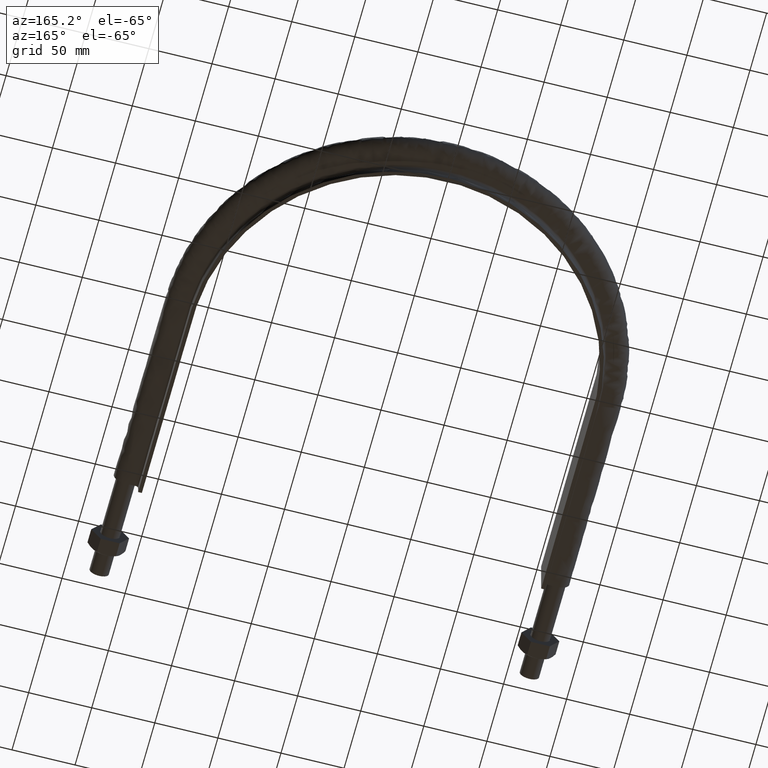
[diagram: clean part render]
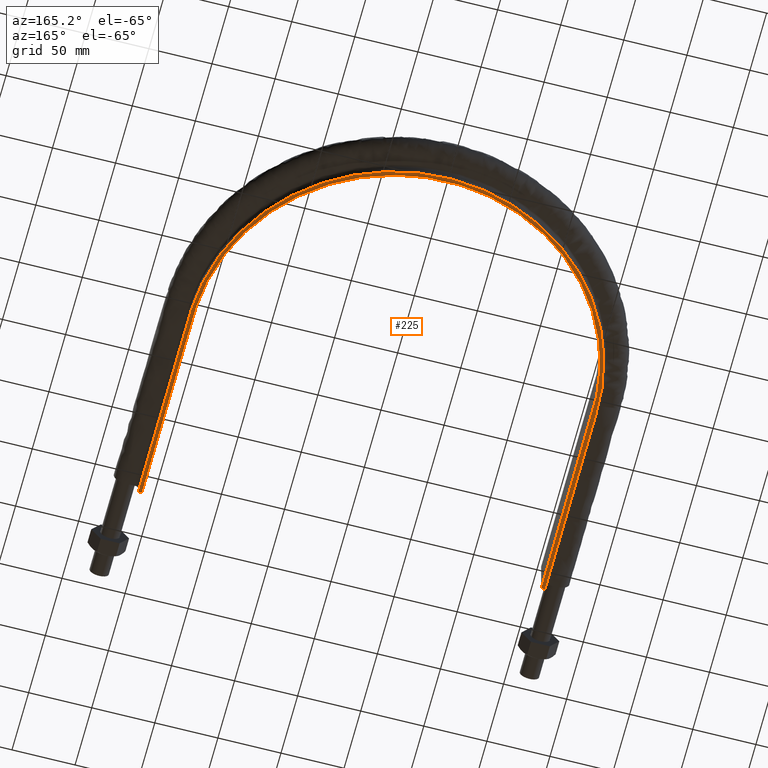
[diagram: same view with one face highlighted and labeled with its STEP entity id]
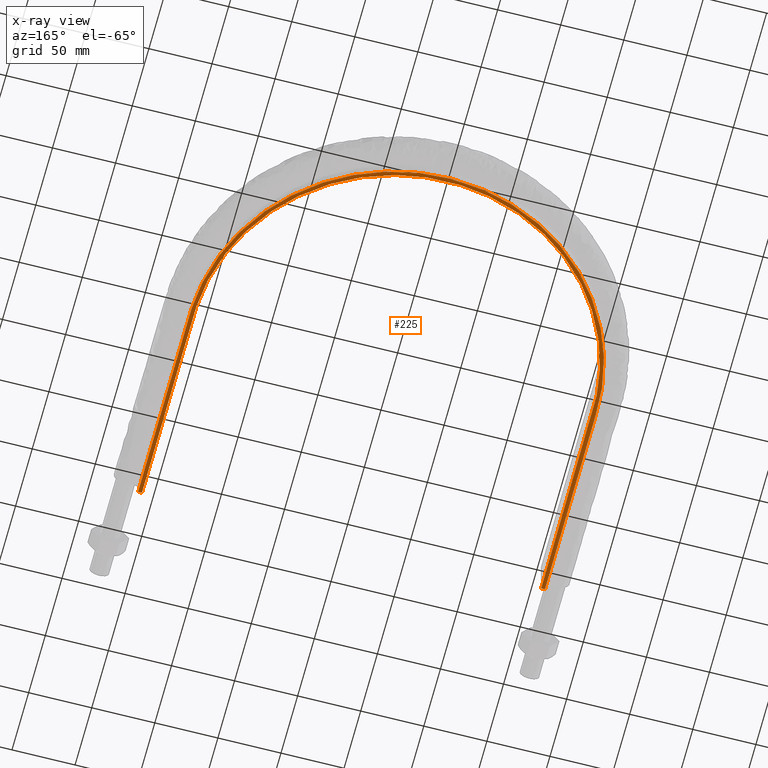
[diagram: x-ray of the same camera — body ghosted, the highlighted face saturated]
A machine part, auxiliary view. The second image highlights one B-rep face of the part: STEP entity #225.
The next image is the same camera in x-ray: the body ghosted, the highlighted face saturated — about 0% of this face is hidden behind the body in this view.
In plain terms, the highlighted planar face has unit normal (0, 0, 1).
Its self-contained STEP definition (entity closure, byte-faithful):
#225 = ADVANCED_FACE( '', ( #274 ), #275, .F. );
#274 = FACE_OUTER_BOUND( '', #952, .T. );
#275 = PLANE( '', #953 );
#952 = EDGE_LOOP( '', ( #1687, #1688, #1689, #1690 ) );
#953 = AXIS2_PLACEMENT_3D( '', #1691, #1692, #1693 );
#1687 = ORIENTED_EDGE( '', *, *, #1916, .F. );
#1688 = ORIENTED_EDGE( '', *, *, #1914, .F. );
#1689 = ORIENTED_EDGE( '', *, *, #1909, .T. );
#1690 = ORIENTED_EDGE( '', *, *, #1906, .F. );
#1691 = CARTESIAN_POINT( '', ( 200.000000000000, 481.660000000000, -20.0000000000000 ) );
#1692 = DIRECTION( '', ( 0.000000000000000, 0.000000000000000, 1.00000000000000 ) );
#1693 = DIRECTION( '', ( 1.22460635382238E-016, 1.00000000000000, 0.000000000000000 ) );
#1906 = EDGE_CURVE( '', #1984, #1987, #1988, .T. );
#1909 = EDGE_CURVE( '', #1991, #1987, #1992, .T. );
#1914 = EDGE_CURVE( '', #1991, #1996, #2000, .T. );
#1916 = EDGE_CURVE( '', #1996, #1984, #2002, .T. );
#1984 = VERTEX_POINT( '', #2410 );
#1987 = VERTEX_POINT( '', #2414 );
#1988 = LINE( '', #2415, #2416 );
#1991 = VERTEX_POINT( '', #2421 );
#1992 = B_SPLINE_CURVE_WITH_KNOTS( '', 3, ( #2422, #2423, #2424, #2425, #2426, #2427, #2428, #2429, #2430, #2431, #2432, #2433, #2434, #2435, #2436, #2437, #2438, #2439, #2440, #2441, #2442, #2443, #2444, #2445, #2446, #2447, #2448, #2449, #2450, #2451, #2452, #2453, #2454, #2455, #2456, #2457, #2458, #2459, #2460, #2461, #2462, #2463, #2464, #2465, #2466, #2467, #2468, #2469, #2470, #2471, #2472, #2473, #2474, #2475, #2476, #2477, #2478, #2479, #2480, #2481, #2482, #2483, #2484, #2485, #2486, #2487, #2488, #2489, #2490, #2491, #2492, #2493, #2494, #2495, #2496, #2497, #2498, #2499, #2500, #2501, #2502, #2503, #2504, #2505, #2506, #2507, #2508, #2509, #2510, #2511, #2512, #2513, #2514, #2515, #2516, #2517, #2518, #2519, #2520, #2521, #2522, #2523, #2524, #2525, #2526, #2527, #2528, #2529, #2530, #2531, #2532, #2533 ), .UNSPECIFIED., .F., .F., ( 4, 1, 2, 2, 2, 2, 2, 2, 2, 2, 2, 2, 2, 2, 2, 2, 2, 2, 2, 2, 2, 2, 2, 2, 2, 2, 2, 2, 2, 2, 2, 2, 2, 2, 2, 2, 2, 2, 2, 2, 2, 2, 2, 2, 2, 2, 2, 2, 2, 2, 2, 2, 2, 2, 2, 1, 4 ), ( 4.16333634234434E-017, 0.102905858842167, 0.154358788263250, 0.157574596352068, 0.160790404440885, 0.167222020618521, 0.180085252973792, 0.192948485329063, 0.205811717684334, 0.212243333861970, 0.215459141950788, 0.218674950039606, 0.231538182394878, 0.244401414750149, 0.257264647105421, 0.270127879460693, 0.276559495638329, 0.282991111815965, 0.295854344171237, 0.308717576526508, 0.321580808881780, 0.328012425059416, 0.334444041237052, 0.347307273592324, 0.360170505947596, 0.373033738302868, 0.379465354480504, 0.385896970658140, 0.398760203013412, 0.411623435368684, 0.424486667723955, 0.437349900079227, 0.463076364789771, 0.475939597145043, 0.488802829500315, 0.495234445677951, 0.501666061855587, 0.514529294210859, 0.527392526566130, 0.540255758921402, 0.546687375099038, 0.553118991276674, 0.565982223631946, 0.578845455987217, 0.591708688342489, 0.598140304520125, 0.604571920697761, 0.617435153053032, 0.630298385408304, 0.643161617763575, 0.656024850118847, 0.662456466296482, 0.665672274385300, 0.668888082474118, 0.694614547184662, 0.720341011895205, 0.823246870737378 ), .UNSPECIFIED. );
#1996 = VERTEX_POINT( '', #2548 );
#2000 = LINE( '', #2554, #2555 );
#2002 = B_SPLINE_CURVE_WITH_KNOTS( '', 3, ( #2574, #2575, #2576, #2577, #2578, #2579, #2580, #2581, #2582, #2583, #2584, #2585, #2586, #2587, #2588, #2589, #2590, #2591 ), .UNSPECIFIED., .F., .F., ( 4, 3, 1, 1, 1, 1, 1, 1, 1, 1, 3, 4 ), ( -11.0000000000000, -10.0000000000000, -9.00000000000000, -8.00000000000000, -7.00000000000000, -6.00000000000000, -5.00000000000000, -4.00000000000000, -3.00000000000000, -2.00000000000000, -1.00000000000000, 0.000000000000000 ), .UNSPECIFIED. );
#2410 = CARTESIAN_POINT( '', ( 158.250000000000, 81.6600000000000, -20.0000000000000 ) );
#2414 = CARTESIAN_POINT( '', ( 161.250000000000, 81.6600000000001, -20.0000000000000 ) );
#2415 = CARTESIAN_POINT( '', ( -200.000000000000, 81.6600000000002, -20.0000000000000 ) );
#2416 = VECTOR( '', #2863, 1000.00000000000 );
#2421 = CARTESIAN_POINT( '', ( -161.250000000000, 81.6600000000001, -20.0000000000000 ) );
#2422 = CARTESIAN_POINT( '', ( -161.250000000000, 81.6600000000001, -20.0000000000000 ) );
#2423 = CARTESIAN_POINT( '', ( -161.250000000000, 115.961965199335, -20.0000000000000 ) );
#2424 = CARTESIAN_POINT( '', ( -161.250000000000, 167.414912998337, -20.0000000000000 ) );
#2425 = CARTESIAN_POINT( '', ( -161.250000000000, 218.867860797340, -20.0000000000000 ) );
#2426 = CARTESIAN_POINT( '', ( -161.250000000000, 237.090779809486, -20.0000000000000 ) );
#2427 = CARTESIAN_POINT( '', ( -161.251970915232, 238.162717887778, -20.0000000000000 ) );
#2428 = CARTESIAN_POINT( '', ( -161.233234905318, 240.306574877111, -20.0000000000000 ) );
#2429 = CARTESIAN_POINT( '', ( -161.212573749003, 241.378493826836, -20.0000000000000 ) );
#2430 = CARTESIAN_POINT( '', ( -161.118167583804, 244.594223272434, -20.0000000000000 ) );
#2431 = CARTESIAN_POINT( '', ( -161.012016167499, 246.737364921138, -20.0000000000000 ) );
#2432 = CARTESIAN_POINT( '', ( -160.568059920858, 253.130988149217, -20.0000000000000 ) );
#2433 = CARTESIAN_POINT( '', ( -160.104407936144, 257.357673118889, -20.0000000000000 ) );
#2434 = CARTESIAN_POINT( '', ( -158.852451542727, 265.741864153589, -20.0000000000000 ) );
#2435 = CARTESIAN_POINT( '', ( -158.063775191925, 269.899290962942, -20.0000000000000 ) );
#2436 = CARTESIAN_POINT( '', ( -156.162945028249, 278.145216045004, -20.0000000000000 ) );
#2437 = CARTESIAN_POINT( '', ( -155.050685017919, 282.233691688517, -20.0000000000000 ) );
#2438 = CARTESIAN_POINT( '', ( -153.134376609017, 288.313577201091, -20.0000000000000 ) );
#2439 = CARTESIAN_POINT( '', ( -152.454186526902, 290.331379550325, -20.0000000000000 ) );
#2440 = CARTESIAN_POINT( '', ( -151.370652027001, 293.344605513937, -20.0000000000000 ) );
#2441 = CARTESIAN_POINT( '', ( -150.998932061584, 294.346767858147, -20.0000000000000 ) );
#2442 = CARTESIAN_POINT( '', ( -150.234219283645, 296.346559599474, -20.0000000000000 ) );
#2443 = CARTESIAN_POINT( '', ( -149.840760044903, 297.345319193443, -20.0000000000000 ) );
#2444 = CARTESIAN_POINT( '', ( -147.826549821755, 302.311248733165, -20.0000000000000 ) );
#2445 = CARTESIAN_POINT( '', ( -146.066449266342, 306.193281154290, -20.0000000000000 ) );
#2446 = CARTESIAN_POINT( '', ( -142.261276995410, 313.783543362077, -20.0000000000000 ) );
#2447 = CARTESIAN_POINT( '', ( -140.215650977875, 317.491435082421, -20.0000000000000 ) );
#2448 = CARTESIAN_POINT( '', ( -135.842265497154, 324.735146597987, -20.0000000000000 ) );
#2449 = CARTESIAN_POINT( '', ( -133.514264763888, 328.270819243666, -20.0000000000000 ) );
#2450 = CARTESIAN_POINT( '', ( -128.572511593200, 335.167885850242, -20.0000000000000 ) );
#2451 = CARTESIAN_POINT( '', ( -125.958458072442, 338.529096181760, -20.0000000000000 ) );
#2452 = CARTESIAN_POINT( '', ( -121.814782223255, 343.435151638853, -20.0000000000000 ) );
#2453 = CARTESIAN_POINT( '', ( -120.395398909187, 345.048693263545, -20.0000000000000 ) );
#2454 = CARTESIAN_POINT( '', ( -117.508079182863, 348.201555524783, -20.0000000000000 ) );
#2455 = CARTESIAN_POINT( '', ( -116.037116900756, 349.744609171351, -20.0000000000000 ) );
#2456 = CARTESIAN_POINT( '', ( -111.544115229342, 354.275828924883, -20.0000000000000 ) );
#2457 = CARTESIAN_POINT( '', ( -108.441840326106, 357.165906302352, -20.0000000000000 ) );
#2458 = CARTESIAN_POINT( '', ( -102.027993104791, 362.690192845027, -20.0000000000000 ) );
#2459 = CARTESIAN_POINT( '', ( -98.7162675526894, 365.324214680088, -20.0000000000000 ) );
#2460 = CARTESIAN_POINT( '', ( -91.8819928807469, 370.334524400556, -20.0000000000000 ) );
#2461 = CARTESIAN_POINT( '', ( -88.3596907755549, 372.711114263876, -20.0000000000000 ) );
#2462 = CARTESIAN_POINT( '', ( -82.9131148904049, 376.076579870327, -20.0000000000000 ) );
#2463 = CARTESIAN_POINT( '', ( -81.0683875074586, 377.166193615632, -20.0000000000000 ) );
#2464 = CARTESIAN_POINT( '', ( -77.3317958302756, 379.272768040217, -20.0000000000000 ) );
#2465 = CARTESIAN_POINT( '', ( -75.4485733332874, 380.284931874203, -20.0000000000000 ) );
#2466 = CARTESIAN_POINT( '', ( -69.7551854747403, 383.200972491039, -20.0000000000000 ) );
#2467 = CARTESIAN_POINT( '', ( -65.9013247113465, 384.984467170127, -20.0000000000000 ) );
#2468 = CARTESIAN_POINT( '', ( -58.0804202517151, 388.239634254254, -20.0000000000000 ) );
#2469 = CARTESIAN_POINT( '', ( -54.1132805496331, 389.711042160399, -20.0000000000000 ) );
#2470 = CARTESIAN_POINT( '', ( -46.0659693145780, 392.342451988916, -20.0000000000000 ) );
#2471 = CARTESIAN_POINT( '', ( -41.9857908178075, 393.502434725825, -20.0000000000000 ) );
#2472 = CARTESIAN_POINT( '', ( -35.7788001219019, 395.003484577897, -20.0000000000000 ) );
#2473 = CARTESIAN_POINT( '', ( -33.6953274684608, 395.463953402796, -20.0000000000000 ) );
#2474 = CARTESIAN_POINT( '', ( -29.4987718017213, 396.303313649412, -20.0000000000000 ) );
#2475 = CARTESIAN_POINT( '', ( -27.3829209230296, 396.682429210543, -20.0000000000000 ) );
#2476 = CARTESIAN_POINT( '', ( -21.0466853046325, 397.686912615105, -20.0000000000000 ) );
#2477 = CARTESIAN_POINT( '', ( -16.8206764592037, 398.183540422579, -20.0000000000000 ) );
#2478 = CARTESIAN_POINT( '', ( -8.36508872482937, 398.843213611926, -20.0000000000000 ) );
#2479 = CARTESIAN_POINT( '', ( -4.13550690497119, 399.005985131345, -20.0000000000000 ) );
#2480 = CARTESIAN_POINT( '', ( 4.32719410328342, 399.000998872241, -20.0000000000000 ) );
#2481 = CARTESIAN_POINT( '', ( 8.56031456561188, 398.833122058386, -20.0000000000000 ) );
#2482 = CARTESIAN_POINT( '', ( 17.0301467584836, 398.161802783820, -20.0000000000000 ) );
#2483 = CARTESIAN_POINT( '', ( 21.2680294419018, 397.657983918811, -20.0000000000000 ) );
#2484 = CARTESIAN_POINT( '', ( 33.9802165437881, 395.623709791005, -20.0000000000000 ) );
#2485 = CARTESIAN_POINT( '', ( 42.2310729782483, 393.606818672319, -20.0000000000000 ) );
#2486 = CARTESIAN_POINT( '', ( 54.2908410328600, 389.647616386271, -20.0000000000000 ) );
#2487 = CARTESIAN_POINT( '', ( 58.2576520963770, 388.171179239562, -20.0000000000000 ) );
#2488 = CARTESIAN_POINT( '', ( 66.0843154338636, 384.902728651074, -20.0000000000000 ) );
#2489 = CARTESIAN_POINT( '', ( 69.9441313402931, 383.110607908777, -20.0000000000000 ) );
#2490 = CARTESIAN_POINT( '', ( 75.6509454424318, 380.177805907143, -20.0000000000000 ) );
#2491 = CARTESIAN_POINT( '', ( 77.5426772134455, 379.157302999128, -20.0000000000000 ) );
#2492 = CARTESIAN_POINT( '', ( 81.2664045092923, 377.050881392272, -20.0000000000000 ) );
#2493 = CARTESIAN_POINT( '', ( 83.1015353490377, 375.963526390946, -20.0000000000000 ) );
#2494 = CARTESIAN_POINT( '', ( 88.5280133782897, 372.600668685161, -20.0000000000000 ) );
#2495 = CARTESIAN_POINT( '', ( 92.0404830075280, 370.224420446989, -20.0000000000000 ) );
#2496 = CARTESIAN_POINT( '', ( 98.8614844593550, 365.211446553422, -20.0000000000000 ) );
#2497 = CARTESIAN_POINT( '', ( 102.169735354849, 362.574362086853, -20.0000000000000 ) );
#2498 = CARTESIAN_POINT( '', ( 108.581664191105, 357.038904500291, -20.0000000000000 ) );
#2499 = CARTESIAN_POINT( '', ( 111.685472441703, 354.140697817163, -20.0000000000000 ) );
#2500 = CARTESIAN_POINT( '', ( 116.183929168265, 349.592534669379, -20.0000000000000 ) );
#2501 = CARTESIAN_POINT( '', ( 117.657197177954, 348.042994176751, -20.0000000000000 ) );
#2502 = CARTESIAN_POINT( '', ( 120.549969424760, 344.875243978806, -20.0000000000000 ) );
#2503 = CARTESIAN_POINT( '', ( 121.961372900328, 343.265822195803, -20.0000000000000 ) );
#2504 = CARTESIAN_POINT( '', ( 126.084231292280, 338.370894215507, -20.0000000000000 ) );
#2505 = CARTESIAN_POINT( '', ( 128.687862132817, 335.014884428992, -20.0000000000000 ) );
#2506 = CARTESIAN_POINT( '', ( 133.614104291602, 328.123086121270, -20.0000000000000 ) );
#2507 = CARTESIAN_POINT( '', ( 135.936741699420, 324.587314290541, -20.0000000000000 ) );
#2508 = CARTESIAN_POINT( '', ( 140.303187725938, 317.337393388617, -20.0000000000000 ) );
#2509 = CARTESIAN_POINT( '', ( 142.347002366259, 313.623248169679, -20.0000000000000 ) );
#2510 = CARTESIAN_POINT( '', ( 145.199960385568, 307.915917263361, -20.0000000000000 ) );
#2511 = CARTESIAN_POINT( '', ( 146.115586045391, 305.990852287167, -20.0000000000000 ) );
#2512 = CARTESIAN_POINT( '', ( 147.874337612238, 302.094341522096, -20.0000000000000 ) );
#2513 = CARTESIAN_POINT( '', ( 148.719087610204, 300.118601627143, -20.0000000000000 ) );
#2514 = CARTESIAN_POINT( '', ( 151.123452875939, 294.167112728363, -20.0000000000000 ) );
#2515 = CARTESIAN_POINT( '', ( 152.557447500547, 290.159603132713, -20.0000000000000 ) );
#2516 = CARTESIAN_POINT( '', ( 155.097987031580, 282.067332444643, -20.0000000000000 ) );
#2517 = CARTESIAN_POINT( '', ( 156.204785204810, 277.982631102589, -20.0000000000000 ) );
#2518 = CARTESIAN_POINT( '', ( 158.096571563126, 269.737307439231, -20.0000000000000 ) );
#2519 = CARTESIAN_POINT( '', ( 158.881533638948, 265.576678958266, -20.0000000000000 ) );
#2520 = CARTESIAN_POINT( '', ( 160.126485202368, 257.178754900733, -20.0000000000000 ) );
#2521 = CARTESIAN_POINT( '', ( 160.586476129898, 252.941459663872, -20.0000000000000 ) );
#2522 = CARTESIAN_POINT( '', ( 161.023852965700, 246.525921502261, -20.0000000000000 ) );
#2523 = CARTESIAN_POINT( '', ( 161.127010288297, 244.383125914021, -20.0000000000000 ) );
#2524 = CARTESIAN_POINT( '', ( 161.217116290897, 241.171655465551, -20.0000000000000 ) );
#2525 = CARTESIAN_POINT( '', ( 161.236411497612, 240.101144468193, -20.0000000000000 ) );
#2526 = CARTESIAN_POINT( '', ( 161.253465436087, 237.960080668609, -20.0000000000000 ) );
#2527 = CARTESIAN_POINT( '', ( 161.250233854434, 236.889525944068, -20.0000000000000 ) );
#2528 = CARTESIAN_POINT( '', ( 161.248232465993, 227.254585994230, -20.0000000000000 ) );
#2529 = CARTESIAN_POINT( '', ( 161.250000000000, 218.690201811976, -20.0000000000000 ) );
#2530 = CARTESIAN_POINT( '', ( 161.250000000000, 201.561426585479, -20.0000000000000 ) );
#2531 = CARTESIAN_POINT( '', ( 161.250000000000, 158.739488519236, -20.0000000000000 ) );
#2532 = CARTESIAN_POINT( '', ( 161.250000000000, 115.917550452994, -20.0000000000000 ) );
#2533 = CARTESIAN_POINT( '', ( 161.250000000000, 81.6600000000003, -20.0000000000000 ) );
#2548 = CARTESIAN_POINT( '', ( -158.250000000000, 81.6600000000001, -20.0000000000000 ) );
#2554 = CARTESIAN_POINT( '', ( -200.000000000000, 81.6600000000002, -20.0000000000000 ) );
#2555 = VECTOR( '', #2869, 1000.00000000000 );
#2574 = CARTESIAN_POINT( '', ( -158.250000000000, 81.6600000000000, -20.0000000000000 ) );
#2575 = CARTESIAN_POINT( '', ( -158.250000000000, 133.693333333333, -20.0000000000000 ) );
#2576 = CARTESIAN_POINT( '', ( -158.250000000000, 185.726666666667, -20.0000000000000 ) );
#2577 = CARTESIAN_POINT( '', ( -158.250000000000, 237.760000000000, -20.0000000000000 ) );
#2578 = CARTESIAN_POINT( '', ( -158.250000000000, 256.156911933927, -20.0000000000000 ) );
#2579 = CARTESIAN_POINT( '', ( -151.757047170069, 293.001902403907, -20.0000000000000 ) );
#2580 = CARTESIAN_POINT( '', ( -123.713478340979, 341.566099773159, -20.0000000000000 ) );
#2581 = CARTESIAN_POINT( '', ( -80.7482382074828, 377.620533900828, -20.0000000000000 ) );
#2582 = CARTESIAN_POINT( '', ( -28.0435688290890, 396.802885516853, -20.0000000000000 ) );
#2583 = CARTESIAN_POINT( '', ( 28.0435688290892, 396.802885516853, -20.0000000000000 ) );
#2584 = CARTESIAN_POINT( '', ( 80.7482382074830, 377.620533900828, -20.0000000000000 ) );
#2585 = CARTESIAN_POINT( '', ( 123.713478340980, 341.566099773159, -20.0000000000000 ) );
#2586 = CARTESIAN_POINT( '', ( 151.757047170069, 293.001902403907, -20.0000000000000 ) );
#2587 = CARTESIAN_POINT( '', ( 158.250000000000, 256.156911933927, -20.0000000000000 ) );
#2588 = CARTESIAN_POINT( '', ( 158.250000000000, 237.760000000000, -20.0000000000000 ) );
#2589 = CARTESIAN_POINT( '', ( 158.250000000000, 185.726666666667, -20.0000000000000 ) );
#2590 = CARTESIAN_POINT( '', ( 158.250000000000, 133.693333333333, -20.0000000000000 ) );
#2591 = CARTESIAN_POINT( '', ( 158.250000000000, 81.6600000000000, -20.0000000000000 ) );
#2863 = DIRECTION( '', ( 1.00000000000000, -1.22460635382238E-016, 0.000000000000000 ) );
#2869 = DIRECTION( '', ( 1.00000000000000, -1.22460635382238E-016, 0.000000000000000 ) );